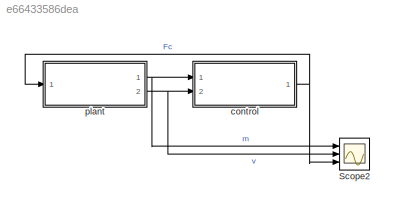
MODEL slx_e66433586dea
KIND model
CONFIG AbsTol = auto
CONFIG EnableMultiTasking = on
CONFIG FixedStep = auto
CONFIG MaxStep = auto
CONFIG MinStep = auto
CONFIG RelTol = 1e-10
CONFIG SampleTimeConstraint = Unconstrained
CONFIG Solver = ode45
CONFIG SolverName = ode45
CONFIG StartTime = 0.0
CONFIG StopTime = 13
BLOCK [Scope] Scope2
  Floating = off
  NumInputPorts = 3
  Ports = [3]
  ScopeSpecificationString = Simulink.scopes.TimeScopeBlockCfg('CurrentConfiguration', extmgr.ConfigurationSet(extmgr.Configuration('Core','General UI',true),extmgr.Configuration('Core','Source UI',true),extmgr.Configuration('Sources','WiredSimulink',true,'DataLoggingSaveFormat','StructureWithTime','DataLoggingLimitDataPoints',true,'DataLoggingDecimation','1','DataLoggingDecimateData',true),extmgr.Configuration('Visuals','Tim...<+1737ch>
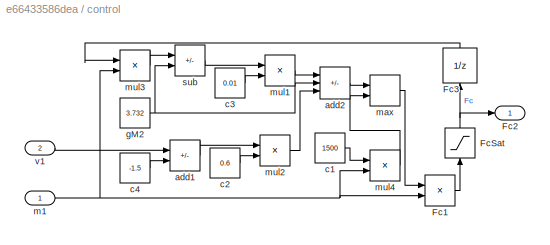
BLOCK [SubSystem] control
  Ports = [2, 1]
  RequestExecContextInheritance = off
BLOCK [Product] control/Fc1
  Inputs = **
  Ports = [2, 1]
  SampleTime = 0.128
BLOCK [Outport] control/Fc2
BLOCK [UnitDelay] control/Fc3
  HasFrameUpgradeWarning = on
  InitialCondition = 2835
  SampleTime = 0.128
BLOCK [Saturate] control/FcSat
  LowerLimit = 1500
  SampleTime = 0.128
  UpperLimit = 5000
BLOCK [Sum] control/add1
  IconShape = rectangular
  Inputs = +-
  Ports = [2, 1]
  SampleTime = 0.128
BLOCK [Sum] control/add2
  IconShape = rectangular
  Inputs = -+-
  Ports = [3, 1]
  SampleTime = 0.128
BLOCK [Constant] control/c1
  Value = 1500
BLOCK [Constant] control/c2
  Value = 0.6
BLOCK [Constant] control/c3
  Value = 0.01
BLOCK [Constant] control/c4
  Value = -1.5
BLOCK [Constant] control/gM2
  Value = 3.732
BLOCK [Inport] control/m1
BLOCK [MinMax] control/max
  Function = max
  Inputs = 2
  Ports = [2, 1]
  SampleTime = 0.128
BLOCK [Product] control/mul1
  Inputs = **
  Ports = [2, 1]
  SampleTime = 0.128
BLOCK [Product] control/mul2
  Inputs = **
  Ports = [2, 1]
  SampleTime = 0.128
BLOCK [Product] control/mul3
  Inputs = */
  Ports = [2, 1]
  SampleTime = 0.128
BLOCK [Product] control/mul4
  Inputs = */
  Ports = [2, 1]
  SampleTime = 0.128
BLOCK [Sum] control/sub
  IconShape = rectangular
  Inputs = +-
  Ports = [2, 1]
  SampleTime = 0.128
BLOCK [Inport] control/v1
  Port = 2
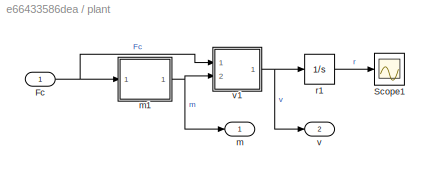
BLOCK [SubSystem] plant
  Ports = [1, 2]
  RequestExecContextInheritance = off
BLOCK [Inport] plant/Fc
BLOCK [Scope] plant/Scope1
  Floating = off
  NumInputPorts = 1
  Ports = [1]
  ScopeSpecificationString = Simulink.scopes.TimeScopeBlockCfg('CurrentConfiguration', extmgr.ConfigurationSet(extmgr.Configuration('Core','General UI',true),extmgr.Configuration('Core','Source UI',true),extmgr.Configuration('Sources','WiredSimulink',true,'DataLoggingVariableName','ScopeData1','DataLoggingSaveFormat','StructureWithTime','DataLoggingLimitDataPoints',true,'DataLoggingDecimation','1','DataLoggingDecimateData',tr...<+1685ch>
BLOCK [Outport] plant/m
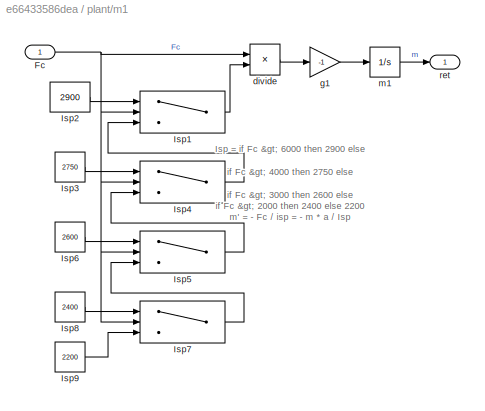
BLOCK [SubSystem] plant/m1
  Ports = [1, 1]
  RequestExecContextInheritance = off
BLOCK [Inport] plant/m1/Fc
BLOCK [Switch] plant/m1/Isp1
  Criteria = u2 > Threshold
  InputSameDT = off
  SampleTime = 0
  SaturateOnIntegerOverflow = off
  Threshold = 6000
BLOCK [Constant] plant/m1/Isp2
  Value = 2900
BLOCK [Constant] plant/m1/Isp3
  Value = 2750
BLOCK [Switch] plant/m1/Isp4
  Criteria = u2 > Threshold
  InputSameDT = off
  SampleTime = 0
  SaturateOnIntegerOverflow = off
  Threshold = 4000
BLOCK [Switch] plant/m1/Isp5
  Criteria = u2 > Threshold
  InputSameDT = off
  SampleTime = 0
  SaturateOnIntegerOverflow = off
  Threshold = 3000
BLOCK [Constant] plant/m1/Isp6
  Value = 2600
BLOCK [Switch] plant/m1/Isp7
  Criteria = u2 > Threshold
  InputSameDT = off
  SampleTime = 0
  SaturateOnIntegerOverflow = off
  Threshold = 2000
BLOCK [Constant] plant/m1/Isp8
  Value = 2400
BLOCK [Constant] plant/m1/Isp9
  Value = 2200
BLOCK [Product] plant/m1/divide
  Inputs = */
  Ports = [2, 1]
  SampleTime = 0
BLOCK [Gain] plant/m1/g1
  Gain = -1
  SampleTime = 0
BLOCK [Integrator] plant/m1/m1
  InitialCondition = 759.5
  Ports = [1, 1]
BLOCK [Outport] plant/m1/ret
BLOCK [Integrator] plant/r1
  InitialCondition = 20
  Ports = [1, 1]
BLOCK [Outport] plant/v
  Port = 2
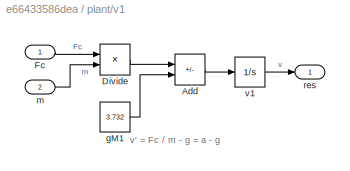
BLOCK [SubSystem] plant/v1
  Ports = [2, 1]
  RequestExecContextInheritance = off
BLOCK [Sum] plant/v1/Add
  IconShape = rectangular
  Inputs = +-
  Ports = [2, 1]
  SampleTime = 0
BLOCK [Product] plant/v1/Divide
  Inputs = */
  Ports = [2, 1]
  SampleTime = 0
BLOCK [Inport] plant/v1/Fc
BLOCK [Constant] plant/v1/gM1
  Value = 3.732
BLOCK [Inport] plant/v1/m
  Port = 2
BLOCK [Outport] plant/v1/res
BLOCK [Integrator] plant/v1/v1
  InitialCondition = -1.5
  Ports = [1, 1]
ANNOTATION plant/m1: Isp = if Fc > 6000 then 2900 else if Fc > 4000 then 2750 else if Fc > 3000 then 2600 else if Fc > 2000 then 2400 else 2200 m' = - Fc / isp = - m * a / Isp
ANNOTATION plant/v1: v' = Fc / m - g = a - g
LINE control/Fc1:1 -> control/FcSat:1
LINE control/Fc3:1 -> control/mul3:1
NET control/FcSat:1 -> control/Fc2:1, control/Fc3:1
LINE control/add1:1 -> control/mul2:1
LINE control/add2:1 -> control/max:1
LINE control/c1:1 -> control/mul4:1
LINE control/c2:1 -> control/mul2:2
LINE control/c3:1 -> control/mul1:2
LINE control/c4:1 -> control/add1:2
NET control/gM2:1 -> control/add2:2, control/sub:2
NET control/m1:1 -> control/Fc1:2, control/mul3:2, control/mul4:2
LINE control/max:1 -> control/Fc1:1
LINE control/mul1:1 -> control/add2:1
LINE control/mul2:1 -> control/add2:3
LINE control/mul3:1 -> control/sub:1
LINE control/mul4:1 -> control/max:2
LINE control/sub:1 -> control/mul1:1
LINE control/v1:1 -> control/add1:1
NET control:1 -> Scope2:3, plant:1
NET plant/Fc:1 -> plant/m1:1, plant/v1:1
NET plant/m1/Fc:1 -> plant/m1/Isp1:2, plant/m1/Isp4:2, plant/m1/Isp5:2, plant/m1/Isp7:2, plant/m1/divide:1
LINE plant/m1/Isp1:1 -> plant/m1/divide:2
LINE plant/m1/Isp2:1 -> plant/m1/Isp1:1
LINE plant/m1/Isp3:1 -> plant/m1/Isp4:1
LINE plant/m1/Isp4:1 -> plant/m1/Isp1:3
LINE plant/m1/Isp5:1 -> plant/m1/Isp4:3
LINE plant/m1/Isp6:1 -> plant/m1/Isp5:1
LINE plant/m1/Isp7:1 -> plant/m1/Isp5:3
LINE plant/m1/Isp8:1 -> plant/m1/Isp7:1
LINE plant/m1/Isp9:1 -> plant/m1/Isp7:3
LINE plant/m1/divide:1 -> plant/m1/g1:1
LINE plant/m1/g1:1 -> plant/m1/m1:1
LINE plant/m1/m1:1 -> plant/m1/ret:1
NET plant/m1:1 -> plant/m:1, plant/v1:2
LINE plant/r1:1 -> plant/Scope1:1
LINE plant/v1/Add:1 -> plant/v1/v1:1
LINE plant/v1/Divide:1 -> plant/v1/Add:1
LINE plant/v1/Fc:1 -> plant/v1/Divide:1
LINE plant/v1/gM1:1 -> plant/v1/Add:2
LINE plant/v1/m:1 -> plant/v1/Divide:2
LINE plant/v1/v1:1 -> plant/v1/res:1
NET plant/v1:1 -> plant/r1:1, plant/v:1
NET plant:1 -> Scope2:1, control:1
NET plant:2 -> Scope2:2, control:2
note: NET lines group one-source signal fan-out (src -> all destinations, sorted); 1:1 wires keep LINE
